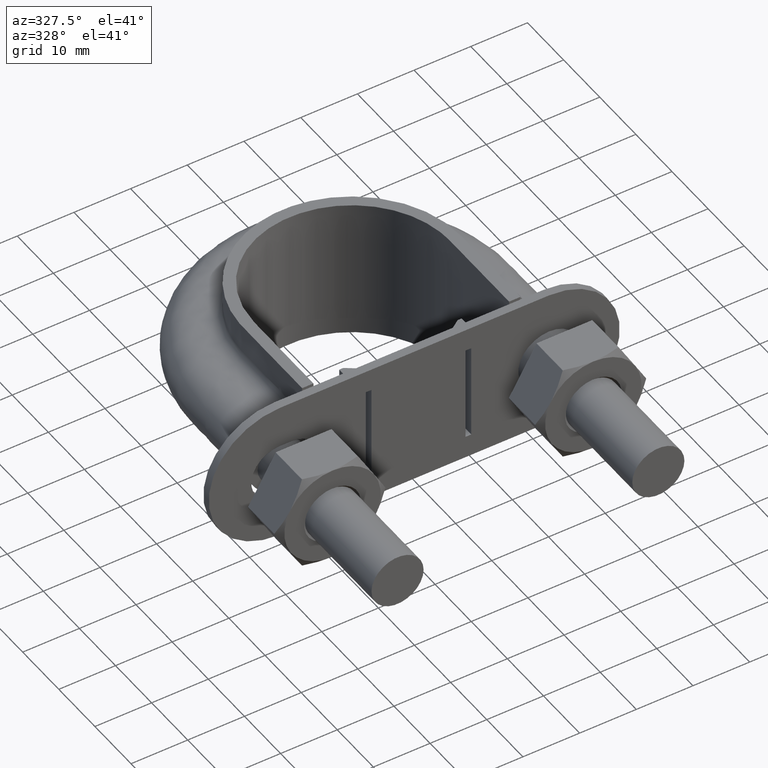
[diagram: clean part render]
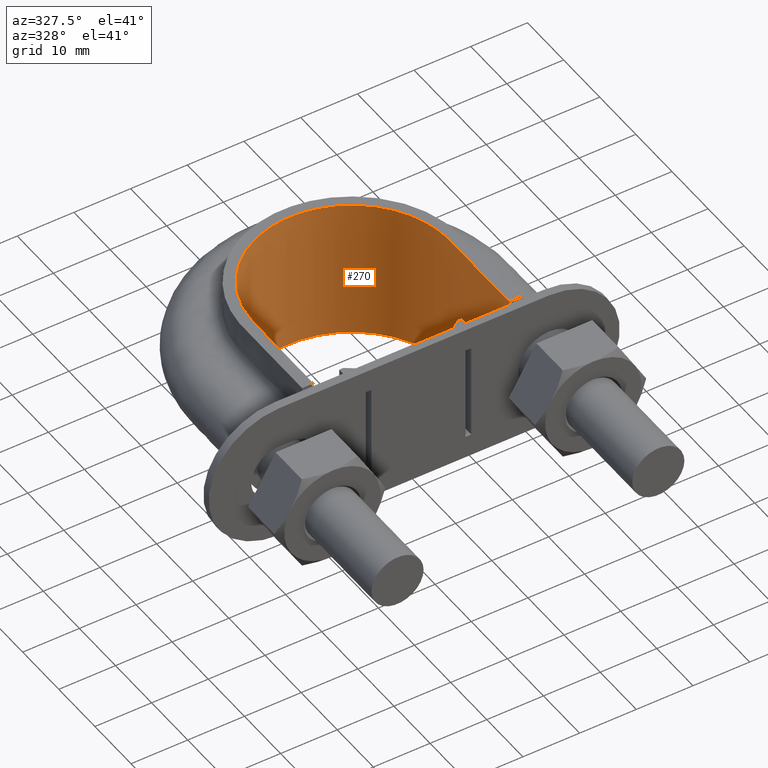
[diagram: same view with one face highlighted and labeled with its STEP entity id]
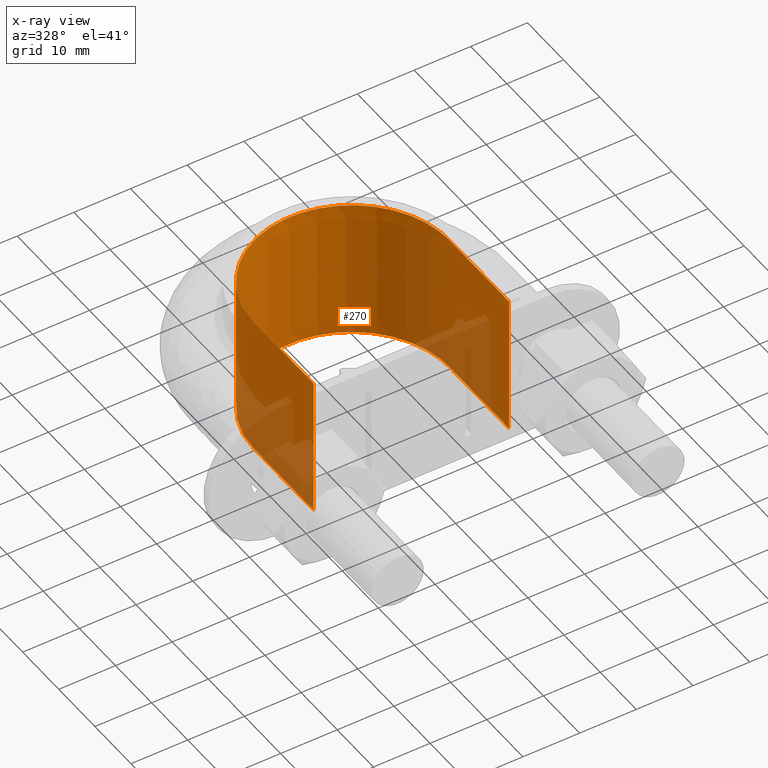
[diagram: x-ray of the same camera — body ghosted, the highlighted face saturated]
A machine part, auxiliary view. The second image highlights one B-rep face of the part: STEP entity #270.
The next image is the same camera in x-ray: the body ghosted, the highlighted face saturated — about 19% of this face is hidden behind the body in this view.
In plain terms, the highlighted face is a SurfaceOfExtrusion surface.
Its self-contained STEP definition (entity closure, byte-faithful):
#270 = ADVANCED_FACE( '', ( #387 ), #388, .T. );
#387 = FACE_OUTER_BOUND( '', #1166, .T. );
#388 = SURFACE_OF_LINEAR_EXTRUSION( '', #1167, #1168 );
#1166 = EDGE_LOOP( '', ( #1730, #1731, #1732, #1733 ) );
#1167 = B_SPLINE_CURVE_WITH_KNOTS( '', 3, ( #1734, #1735, #1736, #1737, #1738, #1739, #1740, #1741, #1742, #1743, #1744, #1745, #1746, #1747, #1748, #1749, #1750 ), .UNSPECIFIED., .F., .F., ( 4, 3, 1, 1, 1, 1, 1, 1, 1, 3, 4 ), ( 0.138743455497382, 1.00000000000000, 1.50000000000000, 2.00000000000000, 3.00000000000000, 4.00000000000000, 5.00000000000000, 6.00000000000000, 6.50000000000000, 7.00000000000000, 7.86125654450262 ), .UNSPECIFIED. );
#1168 = VECTOR( '', #1751, 1000.00000000000 );
#1730 = ORIENTED_EDGE( '', *, *, #2529, .F. );
#1731 = ORIENTED_EDGE( '', *, *, #2517, .F. );
#1732 = ORIENTED_EDGE( '', *, *, #2530, .T. );
#1733 = ORIENTED_EDGE( '', *, *, #2525, .T. );
#1734 = CARTESIAN_POINT( '', ( -17.2500000000000, 32.3000000000000, -69.9996733561149 ) );
#1735 = CARTESIAN_POINT( '', ( -17.2500000000000, 37.7833333333333, -69.9996733561149 ) );
#1736 = CARTESIAN_POINT( '', ( -17.2500000000000, 43.2666666666667, -69.9996733561149 ) );
#1737 = CARTESIAN_POINT( '', ( -17.2500000000000, 48.7500000000000, -69.9996733561149 ) );
#1738 = CARTESIAN_POINT( '', ( -17.2500000000000, 50.2426934616576, -69.9996733561149 ) );
#1739 = CARTESIAN_POINT( '', ( -16.8447140772576, 53.2689573264767, -69.9996733561149 ) );
#1740 = CARTESIAN_POINT( '', ( -14.5369669940350, 58.8768798182963, -69.9996733561149 ) );
#1741 = CARTESIAN_POINT( '', ( -9.02779989662052, 64.3882950029496, -69.9996733561149 ) );
#1742 = CARTESIAN_POINT( '', ( 8.18108714422145E-015, 66.8058524985252, -69.9996733561149 ) );
#1743 = CARTESIAN_POINT( '', ( 9.02779989662053, 64.3882950029496, -69.9996733561149 ) );
#1744 = CARTESIAN_POINT( '', ( 14.5369669940350, 58.8768798182963, -69.9996733561149 ) );
#1745 = CARTESIAN_POINT( '', ( 16.8447140772576, 53.2689573264767, -69.9996733561149 ) );
#1746 = CARTESIAN_POINT( '', ( 17.2500000000000, 50.2426934616576, -69.9996733561149 ) );
#1747 = CARTESIAN_POINT( '', ( 17.2500000000000, 48.7500000000000, -69.9996733561149 ) );
#1748 = CARTESIAN_POINT( '', ( 17.2500000000000, 43.2666666666667, -69.9996733561149 ) );
#1749 = CARTESIAN_POINT( '', ( 17.2500000000000, 37.7833333333333, -69.9996733561149 ) );
#1750 = CARTESIAN_POINT( '', ( 17.2500000000000, 32.3000000000000, -69.9996733561149 ) );
#1751 = DIRECTION( '', ( 0.000000000000000, 0.000000000000000, 1.00000000000000 ) );
#2517 = EDGE_CURVE( '', #2751, #2752, #2753, .T. );
#2525 = EDGE_CURVE( '', #2766, #2767, #2768, .T. );
#2529 = EDGE_CURVE( '', #2752, #2767, #2773, .T. );
#2530 = EDGE_CURVE( '', #2751, #2766, #2774, .T. );
#2751 = VERTEX_POINT( '', #3139 );
#2752 = VERTEX_POINT( '', #3140 );
#2753 = LINE( '', #3141, #3142 );
#2766 = VERTEX_POINT( '', #3258 );
#2767 = VERTEX_POINT( '', #3259 );
#2768 = LINE( '', #3260, #3261 );
#2773 = B_SPLINE_CURVE_WITH_KNOTS( '', 3, ( #3277, #3278, #3279, #3280, #3281, #3282, #3283, #3284, #3285, #3286, #3287, #3288, #3289, #3290, #3291, #3292, #3293 ), .UNSPECIFIED., .F., .F., ( 4, 3, 1, 1, 1, 1, 1, 1, 1, 3, 4 ), ( 0.138743455497382, 1.00000000000000, 1.50000000000000, 2.00000000000000, 3.00000000000000, 4.00000000000000, 5.00000000000000, 6.00000000000000, 6.50000000000000, 7.00000000000000, 7.86125654450262 ), .UNSPECIFIED. );
#2774 = B_SPLINE_CURVE_WITH_KNOTS( '', 3, ( #3294, #3295, #3296, #3297, #3298, #3299, #3300, #3301, #3302, #3303, #3304, #3305, #3306, #3307, #3308, #3309, #3310 ), .UNSPECIFIED., .F., .F., ( 4, 3, 1, 1, 1, 1, 1, 1, 1, 3, 4 ), ( 0.138743455497382, 1.00000000000000, 1.50000000000000, 2.00000000000000, 3.00000000000000, 4.00000000000000, 5.00000000000000, 6.00000000000000, 6.50000000000000, 7.00000000000000, 7.86125654450262 ), .UNSPECIFIED. );
#3139 = CARTESIAN_POINT( '', ( -17.2500000000000, 32.3000000000000, -12.5000000000000 ) );
#3140 = CARTESIAN_POINT( '', ( -17.2500000000000, 32.3000000000000, 12.5000000000000 ) );
#3141 = CARTESIAN_POINT( '', ( -17.2500000000000, 32.3000000000000, -69.9996733561149 ) );
#3142 = VECTOR( '', #3943, 1000.00000000000 );
#3258 = CARTESIAN_POINT( '', ( 17.2500000000000, 32.3000000000000, -12.5000000000000 ) );
#3259 = CARTESIAN_POINT( '', ( 17.2500000000000, 32.3000000000000, 12.5000000000000 ) );
#3260 = CARTESIAN_POINT( '', ( 17.2500000000000, 32.3000000000000, -69.9996733561149 ) );
#3261 = VECTOR( '', #3946, 1000.00000000000 );
#3277 = CARTESIAN_POINT( '', ( -17.2500000000000, 32.3000000000000, 12.5000000000000 ) );
#3278 = CARTESIAN_POINT( '', ( -17.2500000000000, 37.7833333333333, 12.5000000000000 ) );
#3279 = CARTESIAN_POINT( '', ( -17.2500000000000, 43.2666666666667, 12.5000000000000 ) );
#3280 = CARTESIAN_POINT( '', ( -17.2500000000000, 48.7500000000000, 12.5000000000000 ) );
#3281 = CARTESIAN_POINT( '', ( -17.2500000000000, 50.2426934616576, 12.5000000000000 ) );
#3282 = CARTESIAN_POINT( '', ( -16.8447140772576, 53.2689573264767, 12.5000000000000 ) );
#3283 = CARTESIAN_POINT( '', ( -14.5369669940350, 58.8768798182963, 12.5000000000000 ) );
#3284 = CARTESIAN_POINT( '', ( -9.02779989662052, 64.3882950029496, 12.5000000000000 ) );
#3285 = CARTESIAN_POINT( '', ( 8.18108714422145E-015, 66.8058524985252, 12.5000000000000 ) );
#3286 = CARTESIAN_POINT( '', ( 9.02779989662053, 64.3882950029496, 12.5000000000000 ) );
#3287 = CARTESIAN_POINT( '', ( 14.5369669940350, 58.8768798182963, 12.5000000000000 ) );
#3288 = CARTESIAN_POINT( '', ( 16.8447140772576, 53.2689573264767, 12.5000000000000 ) );
#3289 = CARTESIAN_POINT( '', ( 17.2500000000000, 50.2426934616576, 12.5000000000000 ) );
#3290 = CARTESIAN_POINT( '', ( 17.2500000000000, 48.7500000000000, 12.5000000000000 ) );
#3291 = CARTESIAN_POINT( '', ( 17.2500000000000, 43.2666666666667, 12.5000000000000 ) );
#3292 = CARTESIAN_POINT( '', ( 17.2500000000000, 37.7833333333333, 12.5000000000000 ) );
#3293 = CARTESIAN_POINT( '', ( 17.2500000000000, 32.3000000000000, 12.5000000000000 ) );
#3294 = CARTESIAN_POINT( '', ( -17.2500000000000, 32.3000000000000, -12.5000000000000 ) );
#3295 = CARTESIAN_POINT( '', ( -17.2500000000000, 37.7833333333333, -12.5000000000000 ) );
#3296 = CARTESIAN_POINT( '', ( -17.2500000000000, 43.2666666666667, -12.5000000000000 ) );
#3297 = CARTESIAN_POINT( '', ( -17.2500000000000, 48.7500000000000, -12.5000000000000 ) );
#3298 = CARTESIAN_POINT( '', ( -17.2500000000000, 50.2426934616576, -12.5000000000000 ) );
#3299 = CARTESIAN_POINT( '', ( -16.8447140772576, 53.2689573264767, -12.5000000000000 ) );
#3300 = CARTESIAN_POINT( '', ( -14.5369669940350, 58.8768798182963, -12.5000000000000 ) );
#3301 = CARTESIAN_POINT( '', ( -9.02779989662052, 64.3882950029496, -12.5000000000000 ) );
#3302 = CARTESIAN_POINT( '', ( 8.18108714422145E-015, 66.8058524985252, -12.5000000000000 ) );
#3303 = CARTESIAN_POINT( '', ( 9.02779989662053, 64.3882950029496, -12.5000000000000 ) );
#3304 = CARTESIAN_POINT( '', ( 14.5369669940350, 58.8768798182963, -12.5000000000000 ) );
#3305 = CARTESIAN_POINT( '', ( 16.8447140772576, 53.2689573264767, -12.5000000000000 ) );
#3306 = CARTESIAN_POINT( '', ( 17.2500000000000, 50.2426934616576, -12.5000000000000 ) );
#3307 = CARTESIAN_POINT( '', ( 17.2500000000000, 48.7500000000000, -12.5000000000000 ) );
#3308 = CARTESIAN_POINT( '', ( 17.2500000000000, 43.2666666666667, -12.5000000000000 ) );
#3309 = CARTESIAN_POINT( '', ( 17.2500000000000, 37.7833333333333, -12.5000000000000 ) );
#3310 = CARTESIAN_POINT( '', ( 17.2500000000000, 32.3000000000000, -12.5000000000000 ) );
#3943 = DIRECTION( '', ( 0.000000000000000, 0.000000000000000, 1.00000000000000 ) );
#3946 = DIRECTION( '', ( 0.000000000000000, 0.000000000000000, 1.00000000000000 ) );